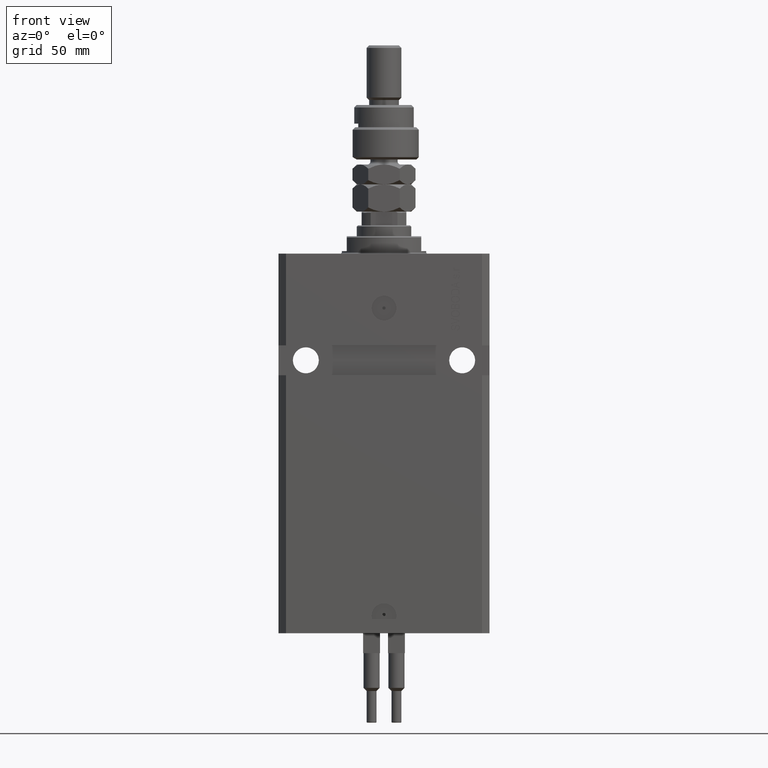
[diagram: clean part render]
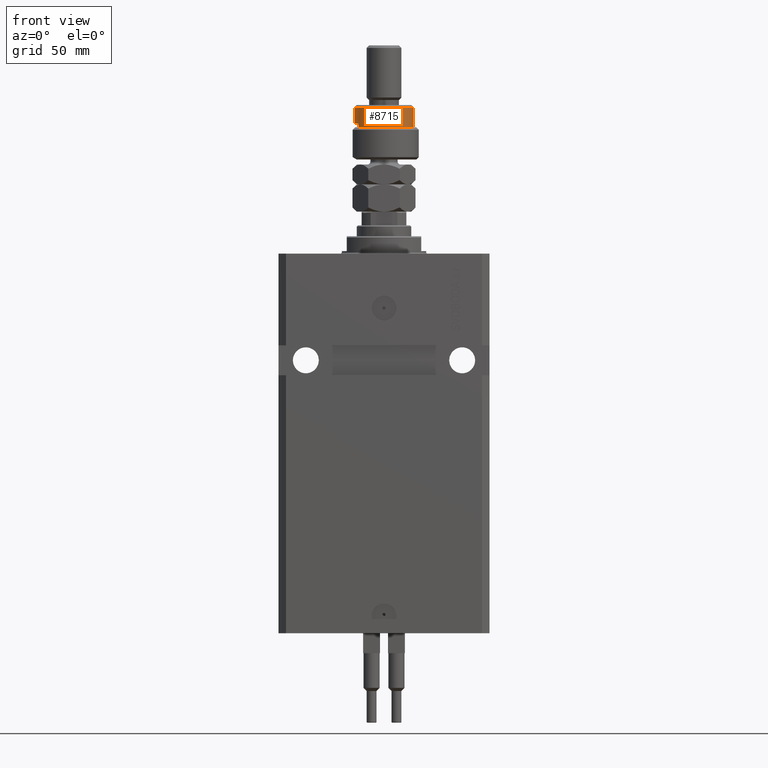
[diagram: same view with one face highlighted and labeled with its STEP entity id]
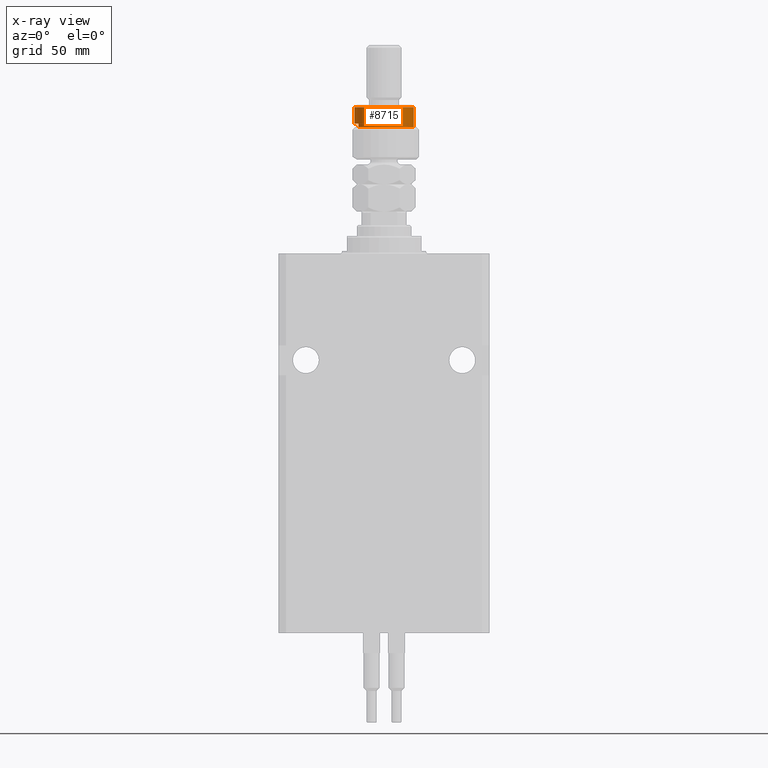
[diagram: x-ray of the same camera — body ghosted, the highlighted face saturated]
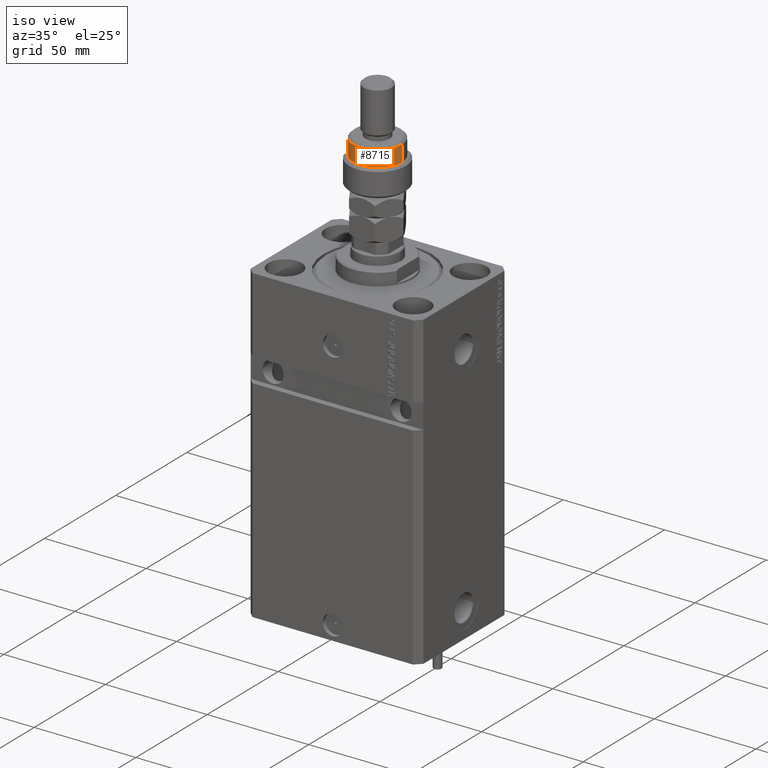
[diagram: same view with one face highlighted and labeled with its STEP entity id]
A machine part, front view. The second image highlights one B-rep face of the part: STEP entity #8715.
The next image is the same camera in x-ray: the body ghosted, the highlighted face saturated — about 0% of this face is hidden behind the body in this view.
A second angle (iso view) of the same face is appended — the face is thin or edge-on in the first view.
In plain terms, the highlighted cylindrical surface (edge-blend (fillet) strip) has radius 12 mm, axis along (-0, -0, -1).
Its self-contained STEP definition (entity closure, byte-faithful):
#177 = ORIENTED_EDGE ( 'NONE', *, *, #13346, .T. ) ;
#1002 = DIRECTION ( 'NONE',  ( 1.000000000000000000, 0.000000000000000000, 0.000000000000000000 ) ) ;
#1064 = DIRECTION ( 'NONE',  ( 0.000000000000000000, 0.000000000000000000, -1.000000000000000000 ) ) ;
#1493 = CARTESIAN_POINT ( 'NONE',  ( 12.00000000000000178, 1.469576158976824144E-15, 20.99999999999999645 ) ) ;
#1654 = DIRECTION ( 'NONE',  ( -1.000000000000000000, 0.000000000000000000, 0.000000000000000000 ) ) ;
#3099 = VERTEX_POINT ( 'NONE', #1493 ) ;
#4008 = DIRECTION ( 'NONE',  ( -1.000000000000000000, 0.000000000000000000, 0.000000000000000000 ) ) ;
#5413 = EDGE_CURVE ( 'NONE', #11218, #26034, #39576, .T. ) ;
#6734 = CIRCLE ( 'NONE', #18307, 12.00000000000000178 ) ;
#7098 = DIRECTION ( 'NONE',  ( -0.000000000000000000, -0.000000000000000000, -1.000000000000000000 ) ) ;
#7192 = AXIS2_PLACEMENT_3D ( 'NONE', #43193, #16468, #4008 ) ;
#8602 = CARTESIAN_POINT ( 'NONE',  ( -10.39230484541326582, -5.999999999999998224, 14.50000000000000000 ) ) ;
#8715 = ADVANCED_FACE ( 'NONE', ( #29152 ), #41099, .T. ) ;
#8866 = CIRCLE ( 'NONE', #7192, 12.00000000000000178 ) ;
#11218 = VERTEX_POINT ( 'NONE', #35840 ) ;
#11949 = CARTESIAN_POINT ( 'NONE',  ( 0.000000000000000000, 0.000000000000000000, 20.99999999999999645 ) ) ;
#13346 = EDGE_CURVE ( 'NONE', #3099, #26804, #6734, .T. ) ;
#13886 = AXIS2_PLACEMENT_3D ( 'NONE', #28491, #36800, #1002 ) ;
#14211 = VECTOR ( 'NONE', #44972, 1000.000000000000000 ) ;
#14750 = CARTESIAN_POINT ( 'NONE',  ( 12.00000000000000178, 1.469576158976824144E-15, 13.00000000000000000 ) ) ;
#16295 = EDGE_LOOP ( 'NONE', ( #17537, #177, #27840, #39607, #24658, #19476 ) ) ;
#16468 = DIRECTION ( 'NONE',  ( 0.000000000000000000, 0.000000000000000000, -1.000000000000000000 ) ) ;
#17537 = ORIENTED_EDGE ( 'NONE', *, *, #23169, .F. ) ;
#17891 = VERTEX_POINT ( 'NONE', #28614 ) ;
#18307 = AXIS2_PLACEMENT_3D ( 'NONE', #11949, #1064, #36081 ) ;
#19476 = ORIENTED_EDGE ( 'NONE', *, *, #5413, .T. ) ;
#20716 = EDGE_CURVE ( 'NONE', #47550, #11218, #30311, .T. ) ;
#21342 = CARTESIAN_POINT ( 'NONE',  ( 0.000000000000000000, 0.000000000000000000, 22.00000000000000000 ) ) ;
#22902 = LINE ( 'NONE', #43159, #36744 ) ;
#23169 = EDGE_CURVE ( 'NONE', #3099, #26034, #28641, .T. ) ;
#24658 = ORIENTED_EDGE ( 'NONE', *, *, #20716, .T. ) ;
#26034 = VERTEX_POINT ( 'NONE', #14750 ) ;
#26721 = VECTOR ( 'NONE', #49743, 1000.000000000000000 ) ;
#26804 = VERTEX_POINT ( 'NONE', #44154 ) ;
#27840 = ORIENTED_EDGE ( 'NONE', *, *, #30148, .T. ) ;
#28491 = CARTESIAN_POINT ( 'NONE',  ( 0.000000000000000000, 0.000000000000000000, 13.00000000000000000 ) ) ;
#28614 = CARTESIAN_POINT ( 'NONE',  ( -12.00000000000000178, 0.000000000000000000, 14.50000000000000000 ) ) ;
#28641 = LINE ( 'NONE', #48337, #14211 ) ;
#29152 = FACE_OUTER_BOUND ( 'NONE', #16295, .T. ) ;
#29743 = AXIS2_PLACEMENT_3D ( 'NONE', #21342, #37213, #1654 ) ;
#30148 = EDGE_CURVE ( 'NONE', #26804, #17891, #22902, .T. ) ;
#30311 = LINE ( 'NONE', #50510, #26721 ) ;
#35840 = CARTESIAN_POINT ( 'NONE',  ( -10.39230484541326760, -6.000000000000000000, 13.00000000000000000 ) ) ;
#36081 = DIRECTION ( 'NONE',  ( 1.000000000000000000, 0.000000000000000000, 0.000000000000000000 ) ) ;
#36744 = VECTOR ( 'NONE', #7098, 1000.000000000000000 ) ;
#36800 = DIRECTION ( 'NONE',  ( 0.000000000000000000, 0.000000000000000000, 1.000000000000000000 ) ) ;
#37213 = DIRECTION ( 'NONE',  ( -0.000000000000000000, -0.000000000000000000, -1.000000000000000000 ) ) ;
#39576 = CIRCLE ( 'NONE', #13886, 12.00000000000000178 ) ;
#39607 = ORIENTED_EDGE ( 'NONE', *, *, #41125, .F. ) ;
#41099 = CYLINDRICAL_SURFACE ( 'NONE', #29743, 12.00000000000000178 ) ;
#41125 = EDGE_CURVE ( 'NONE', #47550, #17891, #8866, .T. ) ;
#43159 = CARTESIAN_POINT ( 'NONE',  ( -12.00000000000000178, 0.000000000000000000, 22.00000000000000000 ) ) ;
#43193 = CARTESIAN_POINT ( 'NONE',  ( 0.000000000000000000, 0.000000000000000000, 14.50000000000000000 ) ) ;
#44154 = CARTESIAN_POINT ( 'NONE',  ( -12.00000000000000178, 0.000000000000000000, 20.99999999999999645 ) ) ;
#44972 = DIRECTION ( 'NONE',  ( -0.000000000000000000, -0.000000000000000000, -1.000000000000000000 ) ) ;
#47550 = VERTEX_POINT ( 'NONE', #8602 ) ;
#48337 = CARTESIAN_POINT ( 'NONE',  ( 12.00000000000000178, 1.469576158976824144E-15, 22.00000000000000000 ) ) ;
#49743 = DIRECTION ( 'NONE',  ( -0.000000000000000000, -0.000000000000000000, -1.000000000000000000 ) ) ;
#50510 = CARTESIAN_POINT ( 'NONE',  ( -10.39230484541326760, -6.000000000000000000, 22.00000000000000000 ) ) ;